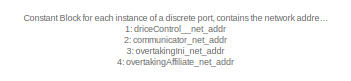
[diagram: root canvas - part 1/3, top left region]
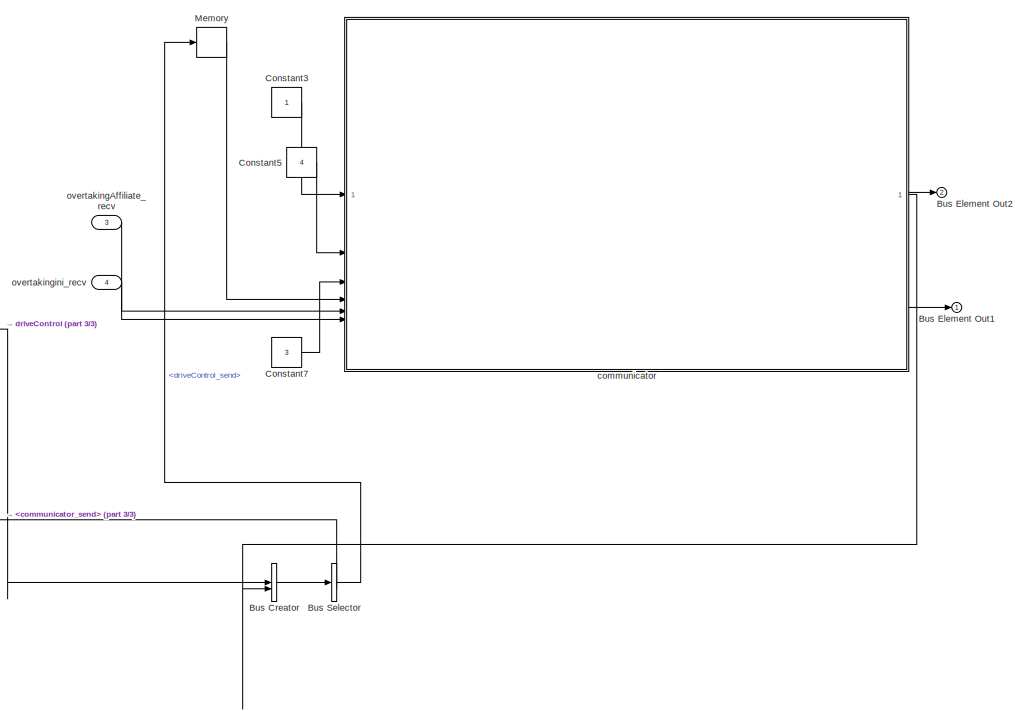
[diagram: root canvas - part 2/3, right side, full height]
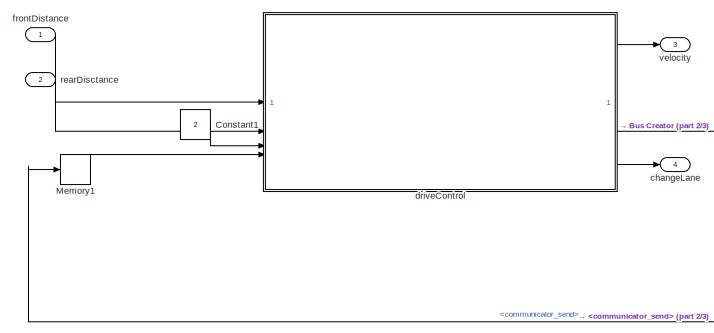
[diagram: root canvas - part 3/3, middle left region]
MODEL slx_bd68939e88a3
KIND model
CONFIG AbsTol = auto
CONFIG EnableMultiTasking = off
CONFIG FixedStep = auto
CONFIG MaxStep = auto
CONFIG MinStep = auto
CONFIG RelTol = 1e-3
CONFIG SampleTimeConstraint = Unconstrained
CONFIG SolverName = VariableStepAuto
CONFIG StartTime = 0.0
CONFIG StopTime = 10.0
BLOCK [BusCreator] Bus Creator
  DisplayOption = bar
  InheritFromInputs = on
  Inputs = 2
BLOCK [Outport] Bus Element Out1
BLOCK [Outport] Bus Element Out2
  Port = 2
BLOCK [BusSelector] Bus Selector
  OutputSignals = driveControl_send,communicator_send
BLOCK [Constant] Constant1
  Value = 2
BLOCK [Constant] Constant3
BLOCK [Constant] Constant5
  NameLocation = left
  Value = 4
BLOCK [Constant] Constant7
  Value = 3
BLOCK [Memory] Memory
BLOCK [Memory] Memory1
BLOCK [Outport] changeLane
  Port = 4
BLOCK [SubSystem] communicator
  PortSchema = {"entries":[{"content":{"sides":[{"content":{"connectorIds":["In4","In1","In2","In5","In6","In3"]},"type":"ConnectorPlacement.EquallySpacedRectSide","uuid":"597f2600-0266-49ee-88a2-3e6a618a9f6e"},{"content":{"connectorIds":["Out1","Out2","Out3"],"side":"RIGHT"},"type":"ConnectorPlacement.EquallySpacedRectSide","uuid":"8a05e0df-8602-4cac-b3df-55f21ffd748f"},{"content":{"side":"TOP"},"type":"Connect...<+266ch>
  ReferencedSubsystem = Coordinator
BLOCK [SubSystem] driveControl
  ReferencedSubsystem = DriveControl
BLOCK [Inport] frontDistance
  OutDataTypeStr = int32
BLOCK [Inport] overtakingAffiliate_recv
  OutDataTypeStr = int32
  Port = 3
BLOCK [Inport] overtakingini_recv
  OutDataTypeStr = int32
  Port = 4
BLOCK [Inport] rearDisctance
  Interpolate = off
  Port = 2
BLOCK [Outport] velocity
  Port = 3
ANNOTATION (root): Constant Block for each instance of a discrete port, contains the network address 1: driceControl__net_addr 2: communicator_net_addr 3: overtakingIni_net_addr 4: overtakingAffiliate_net_addr
LINE Bus Creator:1 -> Bus Selector:1
LINE Bus Selector:1 -> Memory:1
LINE Bus Selector:2 -> Memory1:1
LINE Constant1:1 -> driveControl:3
LINE Constant3:1 -> communicator:1
LINE Constant5:1 -> communicator:2
LINE Constant7:1 -> communicator:3
LINE Memory1:1 -> driveControl:4
LINE Memory:1 -> communicator:4
LINE communicator:1 -> Bus Creator:2
LINE communicator:2 -> Bus Element Out2:1
LINE communicator:3 -> Bus Element Out1:1
LINE driveControl:1 -> velocity:1
LINE driveControl:2 -> Bus Creator:1
LINE driveControl:3 -> changeLane:1
LINE frontDistance:1 -> driveControl:1
LINE overtakingAffiliate_recv:1 -> communicator:5
LINE overtakingini_recv:1 -> communicator:6
LINE rearDisctance:1 -> driveControl:2
